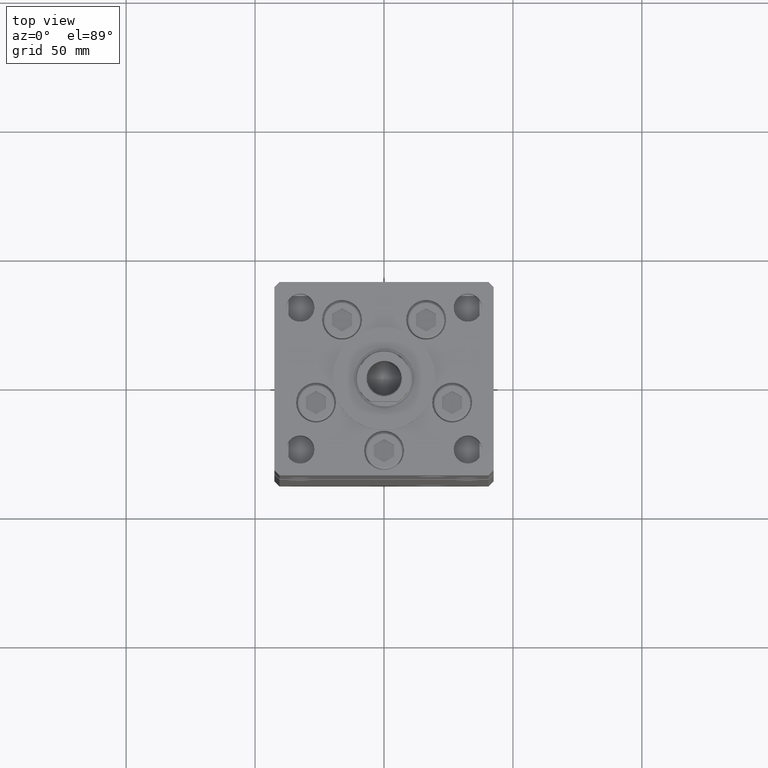
[diagram: clean part render]
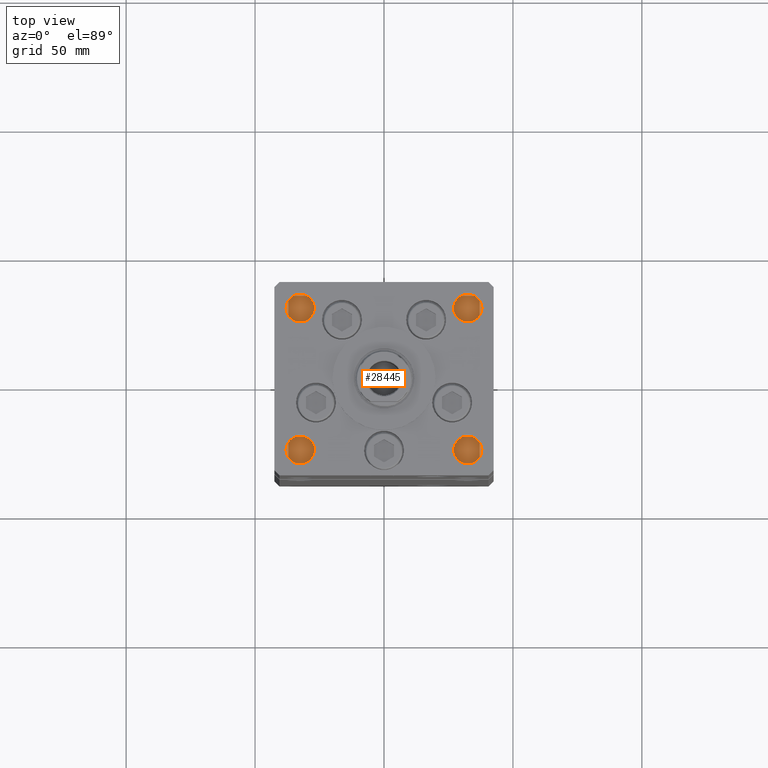
[diagram: same view with one face highlighted and labeled with its STEP entity id]
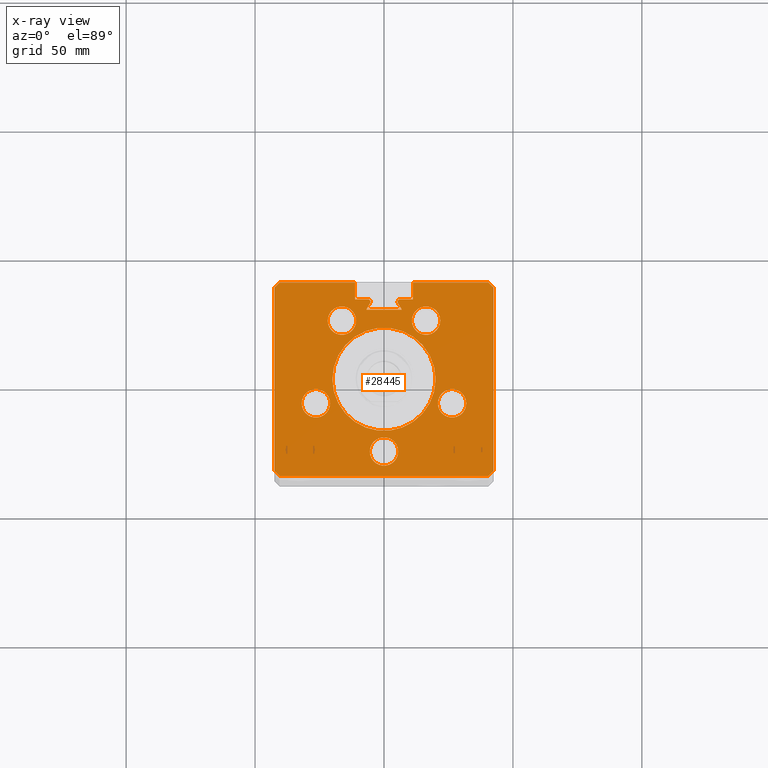
[diagram: x-ray of the same camera — body ghosted, the highlighted face saturated]
A machine part, top view. The second image highlights one B-rep face of the part: STEP entity #28445.
The next image is the same camera in x-ray: the body ghosted, the highlighted face saturated — about 0% of this face is hidden behind the body in this view.
In plain terms, the highlighted planar face has unit normal (0, 0, -1).
Its self-contained STEP definition (entity closure, byte-faithful):
#96 = DIRECTION ( 'NONE',  ( 0.000000000000000000, 0.000000000000000000, -1.000000000000000000 ) ) ;
#240 = LINE ( 'NONE', #28502, #37952 ) ;
#319 = CARTESIAN_POINT ( 'NONE',  ( -26.39865316429776954, -9.333333333333342807, 218.5000000000000000 ) ) ;
#328 = EDGE_CURVE ( 'NONE', #20945, #7636, #4262, .T. ) ;
#379 = VERTEX_POINT ( 'NONE', #1945 ) ;
#533 = VERTEX_POINT ( 'NONE', #21277 ) ;
#1399 = ORIENTED_EDGE ( 'NONE', *, *, #6462, .T. ) ;
#1432 = CARTESIAN_POINT ( 'NONE',  ( -11.24999999999999822, 31.00000000000000000, 218.5000000000000000 ) ) ;
#1512 = DIRECTION ( 'NONE',  ( 1.000000000000000000, 0.000000000000000000, 0.000000000000000000 ) ) ;
#1848 = VECTOR ( 'NONE', #19251, 1000.000000000000114 ) ;
#1945 = CARTESIAN_POINT ( 'NONE',  ( -40.50000000000000711, 37.50000000000000000, 218.5000000000000000 ) ) ;
#2422 = VECTOR ( 'NONE', #19259, 1000.000000000000000 ) ;
#2481 = VERTEX_POINT ( 'NONE', #32890 ) ;
#2559 = CARTESIAN_POINT ( 'NONE',  ( 0.000000000000000000, 31.00000000000000000, 218.5000000000000000 ) ) ;
#2634 = EDGE_CURVE ( 'NONE', #52325, #42331, #5884, .T. ) ;
#2641 = CARTESIAN_POINT ( 'NONE',  ( 11.24999999999999112, 37.50000000000000000, 218.5000000000000000 ) ) ;
#2883 = CARTESIAN_POINT ( 'NONE',  ( 26.39865316429776954, -9.333333333333339255, 218.5000000000000000 ) ) ;
#3151 = DIRECTION ( 'NONE',  ( 0.000000000000000000, 0.000000000000000000, 1.000000000000000000 ) ) ;
#3615 = EDGE_CURVE ( 'NONE', #4590, #35625, #49817, .T. ) ;
#3834 = ORIENTED_EDGE ( 'NONE', *, *, #52741, .F. ) ;
#4227 = DIRECTION ( 'NONE',  ( 0.4999999999999994449, -0.8660254037844390407, 0.000000000000000000 ) ) ;
#4262 = CIRCLE ( 'NONE', #42946, 5.499999999999998224 ) ;
#4329 = ORIENTED_EDGE ( 'NONE', *, *, #35511, .F. ) ;
#4332 = DIRECTION ( 'NONE',  ( 1.000000000000000000, 0.000000000000000000, 0.000000000000000000 ) ) ;
#4590 = VERTEX_POINT ( 'NONE', #30553 ) ;
#5338 = EDGE_CURVE ( 'NONE', #379, #23487, #18992, .T. ) ;
#5434 = CARTESIAN_POINT ( 'NONE',  ( -16.84845819336020867, 9.727461873366657130, 218.5000000000000000 ) ) ;
#5444 = VERTEX_POINT ( 'NONE', #22760 ) ;
#5807 = CARTESIAN_POINT ( 'NONE',  ( -40.50000000000000711, 37.50000000000000000, 218.5000000000000000 ) ) ;
#5884 = LINE ( 'NONE', #34686, #24969 ) ;
#6106 = VERTEX_POINT ( 'NONE', #23157 ) ;
#6226 = EDGE_CURVE ( 'NONE', #26835, #40326, #47430, .T. ) ;
#6321 = DIRECTION ( 'NONE',  ( 0.000000000000000000, 0.000000000000000000, 1.000000000000000000 ) ) ;
#6462 = EDGE_CURVE ( 'NONE', #53004, #2481, #45911, .T. ) ;
#6798 = CARTESIAN_POINT ( 'NONE',  ( 31.89865316429776954, -9.333333333333339255, 218.5000000000000000 ) ) ;
#6949 = ORIENTED_EDGE ( 'NONE', *, *, #22608, .F. ) ;
#7014 = CARTESIAN_POINT ( 'NONE',  ( -42.49999999999998579, -35.50000000000000711, 218.5000000000000000 ) ) ;
#7134 = LINE ( 'NONE', #2559, #2422 ) ;
#7206 = CARTESIAN_POINT ( 'NONE',  ( -11.24999999999999822, 37.50000000000000000, 218.5000000000000000 ) ) ;
#7217 = EDGE_CURVE ( 'NONE', #40895, #42331, #240, .T. ) ;
#7369 = DIRECTION ( 'NONE',  ( 1.000000000000000000, 0.000000000000000000, 0.000000000000000000 ) ) ;
#7381 = ORIENTED_EDGE ( 'NONE', *, *, #6226, .F. ) ;
#7458 = CARTESIAN_POINT ( 'NONE',  ( 20.00000000000000000, 2.449293598294706513E-15, 218.5000000000000000 ) ) ;
#7636 = VERTEX_POINT ( 'NONE', #6798 ) ;
#7882 = AXIS2_PLACEMENT_3D ( 'NONE', #19766, #20562, #7369 ) ;
#7904 = CARTESIAN_POINT ( 'NONE',  ( -11.24999999999999822, 37.50000000000000000, 218.5000000000000000 ) ) ;
#7937 = EDGE_CURVE ( 'NONE', #23224, #39317, #8802, .T. ) ;
#8515 = DIRECTION ( 'NONE',  ( 1.000000000000000000, 0.000000000000000000, 0.000000000000000000 ) ) ;
#8662 = CARTESIAN_POINT ( 'NONE',  ( 6.183333333333997928, 31.00000000000000000, 218.5000000000000000 ) ) ;
#8802 = CIRCLE ( 'NONE', #49147, 5.499999999999998224 ) ;
#9084 = CARTESIAN_POINT ( 'NONE',  ( -20.00000000000000000, 0.000000000000000000, 218.5000000000000000 ) ) ;
#9149 = ORIENTED_EDGE ( 'NONE', *, *, #31593, .T. ) ;
#9284 = DIRECTION ( 'NONE',  ( 1.000000000000000000, 0.000000000000000000, 0.000000000000000000 ) ) ;
#9681 = VERTEX_POINT ( 'NONE', #9084 ) ;
#9747 = VERTEX_POINT ( 'NONE', #24107 ) ;
#9888 = EDGE_CURVE ( 'NONE', #21383, #6106, #15719, .T. ) ;
#10467 = CIRCLE ( 'NONE', #7882, 5.500000000000000000 ) ;
#10705 = CIRCLE ( 'NONE', #37361, 0.9333333333340008142 ) ;
#10820 = CARTESIAN_POINT ( 'NONE',  ( 40.49999999999998579, -37.50000000000000711, 218.5000000000000000 ) ) ;
#10827 = CARTESIAN_POINT ( 'NONE',  ( 0.000000000000000000, 0.000000000000000000, 218.5000000000000000 ) ) ;
#11237 = CARTESIAN_POINT ( 'NONE',  ( -42.50000000000001421, 35.50000000000000711, 218.5000000000000000 ) ) ;
#11300 = CARTESIAN_POINT ( 'NONE',  ( -5.375042956467944499, 29.59999999999899600, 218.4999999999999716 ) ) ;
#11970 = CARTESIAN_POINT ( 'NONE',  ( -42.50000000000001421, 35.50000000000000711, 218.5000000000000000 ) ) ;
#12502 = AXIS2_PLACEMENT_3D ( 'NONE', #38380, #46968, #1512 ) ;
#12681 = CARTESIAN_POINT ( 'NONE',  ( -6.183333333333997928, 30.06666666666599852, 218.5000000000000000 ) ) ;
#12696 = DIRECTION ( 'NONE',  ( -0.7071067811865474617, -0.7071067811865474617, 0.000000000000000000 ) ) ;
#12770 = ORIENTED_EDGE ( 'NONE', *, *, #43691, .F. ) ;
#12886 = CARTESIAN_POINT ( 'NONE',  ( 42.50000000000001421, 35.50000000000000711, 218.5000000000000000 ) ) ;
#13584 = CARTESIAN_POINT ( 'NONE',  ( 16.32291334290543361, 22.75000000000000000, 218.5000000000000000 ) ) ;
#13687 = AXIS2_PLACEMENT_3D ( 'NONE', #12681, #45239, #46024 ) ;
#13759 = DIRECTION ( 'NONE',  ( 1.000000000000000000, 0.000000000000000000, 0.000000000000000000 ) ) ;
#14031 = CARTESIAN_POINT ( 'NONE',  ( -26.39865316429776954, -9.333333333333342807, 218.5000000000000000 ) ) ;
#14231 = ORIENTED_EDGE ( 'NONE', *, *, #5338, .T. ) ;
#14443 = ORIENTED_EDGE ( 'NONE', *, *, #42131, .F. ) ;
#14791 = CARTESIAN_POINT ( 'NONE',  ( 0.000000000000000000, 0.000000000000000000, 218.5000000000000000 ) ) ;
#14864 = FACE_OUTER_BOUND ( 'NONE', #25622, .T. ) ;
#15264 = DIRECTION ( 'NONE',  ( 1.000000000000000000, 0.000000000000000000, 0.000000000000000000 ) ) ;
#15304 = CIRCLE ( 'NONE', #32505, 20.00000000000000000 ) ;
#15390 = FACE_BOUND ( 'NONE', #23704, .T. ) ;
#15533 = LINE ( 'NONE', #37040, #25484 ) ;
#15719 = CIRCLE ( 'NONE', #29452, 5.499999999999998224 ) ;
#15797 = EDGE_CURVE ( 'NONE', #23487, #46979, #32960, .T. ) ;
#15907 = LINE ( 'NONE', #7014, #41065 ) ;
#16119 = EDGE_CURVE ( 'NONE', #16375, #32358, #52737, .T. ) ;
#16343 = CARTESIAN_POINT ( 'NONE',  ( -6.183333333333997928, 30.06666666666599852, 218.5000000000000000 ) ) ;
#16375 = VERTEX_POINT ( 'NONE', #2641 ) ;
#16386 = ORIENTED_EDGE ( 'NONE', *, *, #42077, .F. ) ;
#16533 = DIRECTION ( 'NONE',  ( 1.000000000000000000, 0.000000000000000000, 0.000000000000000000 ) ) ;
#16534 = DIRECTION ( 'NONE',  ( 1.000000000000000000, 0.000000000000000000, 0.000000000000000000 ) ) ;
#16566 = DIRECTION ( 'NONE',  ( 3.909236002201255146E-16, -1.000000000000000000, 0.000000000000000000 ) ) ;
#16570 = VERTEX_POINT ( 'NONE', #37274 ) ;
#16826 = CIRCLE ( 'NONE', #12502, 5.500000000000000000 ) ;
#17085 = AXIS2_PLACEMENT_3D ( 'NONE', #2883, #3151, #15264 ) ;
#17327 = DIRECTION ( 'NONE',  ( 1.000000000000000000, 0.000000000000000000, 0.000000000000000000 ) ) ;
#17368 = ORIENTED_EDGE ( 'NONE', *, *, #27623, .T. ) ;
#17584 = EDGE_LOOP ( 'NONE', ( #31987, #42570 ) ) ;
#17905 = EDGE_CURVE ( 'NONE', #53004, #30970, #10705, .T. ) ;
#18326 = ORIENTED_EDGE ( 'NONE', *, *, #49857, .F. ) ;
#18977 = CARTESIAN_POINT ( 'NONE',  ( -16.32291334290543361, 22.74999999999999645, 218.5000000000000000 ) ) ;
#18992 = LINE ( 'NONE', #5807, #1848 ) ;
#18993 = DIRECTION ( 'NONE',  ( 1.000000000000000000, 0.000000000000000000, 0.000000000000000000 ) ) ;
#19075 = LINE ( 'NONE', #7206, #21116 ) ;
#19251 = DIRECTION ( 'NONE',  ( -0.7071067811865500152, -0.7071067811865451302, 0.000000000000000000 ) ) ;
#19259 = DIRECTION ( 'NONE',  ( -1.000000000000000000, 0.000000000000000000, 0.000000000000000000 ) ) ;
#19379 = CARTESIAN_POINT ( 'NONE',  ( 0.000000000000000000, 26.99999999999986855, 218.5000000000000000 ) ) ;
#19691 = AXIS2_PLACEMENT_3D ( 'NONE', #18977, #6321, #38355 ) ;
#19766 = CARTESIAN_POINT ( 'NONE',  ( 1.714505518806294638E-15, -28.00000000000000000, 218.5000000000000000 ) ) ;
#20112 = EDGE_CURVE ( 'NONE', #16570, #28028, #16826, .T. ) ;
#20198 = CARTESIAN_POINT ( 'NONE',  ( -11.24999999999999822, 37.50000000000000000, 218.5000000000000000 ) ) ;
#20230 = DIRECTION ( 'NONE',  ( -0.000000000000000000, 0.000000000000000000, 1.000000000000000000 ) ) ;
#20562 = DIRECTION ( 'NONE',  ( 0.000000000000000000, 0.000000000000000000, 1.000000000000000000 ) ) ;
#20869 = EDGE_CURVE ( 'NONE', #16375, #5444, #19075, .T. ) ;
#20945 = VERTEX_POINT ( 'NONE', #44066 ) ;
#21116 = VECTOR ( 'NONE', #23361, 1000.000000000000000 ) ;
#21277 = CARTESIAN_POINT ( 'NONE',  ( -5.249999999999996447, 30.06666666666599852, 218.5000000000000000 ) ) ;
#21356 = ORIENTED_EDGE ( 'NONE', *, *, #22334, .T. ) ;
#21383 = VERTEX_POINT ( 'NONE', #50956 ) ;
#21458 = ORIENTED_EDGE ( 'NONE', *, *, #35708, .T. ) ;
#21612 = CARTESIAN_POINT ( 'NONE',  ( 26.39865316429776954, -9.333333333333339255, 218.5000000000000000 ) ) ;
#21681 = AXIS2_PLACEMENT_3D ( 'NONE', #16343, #50201, #8515 ) ;
#21870 = EDGE_LOOP ( 'NONE', ( #44078, #3834 ) ) ;
#22334 = EDGE_CURVE ( 'NONE', #32358, #30970, #47964, .T. ) ;
#22537 = ORIENTED_EDGE ( 'NONE', *, *, #16119, .T. ) ;
#22564 = CARTESIAN_POINT ( 'NONE',  ( -11.24999999999999822, 0.000000000000000000, 218.5000000000000000 ) ) ;
#22608 = EDGE_CURVE ( 'NONE', #5444, #47855, #15533, .T. ) ;
#22722 = DIRECTION ( 'NONE',  ( -1.000000000000000000, 0.000000000000000000, 0.000000000000000000 ) ) ;
#22760 = CARTESIAN_POINT ( 'NONE',  ( 40.50000000000000711, 37.50000000000000000, 218.5000000000000000 ) ) ;
#23157 = CARTESIAN_POINT ( 'NONE',  ( 21.82291334290543361, 22.75000000000000000, 218.5000000000000000 ) ) ;
#23224 = VERTEX_POINT ( 'NONE', #50396 ) ;
#23361 = DIRECTION ( 'NONE',  ( 1.000000000000000000, 0.000000000000000000, 0.000000000000000000 ) ) ;
#23469 = FACE_BOUND ( 'NONE', #26100, .T. ) ;
#23487 = VERTEX_POINT ( 'NONE', #11237 ) ;
#23579 = ORIENTED_EDGE ( 'NONE', *, *, #34220, .F. ) ;
#23704 = EDGE_LOOP ( 'NONE', ( #23579, #25405 ) ) ;
#23976 = AXIS2_PLACEMENT_3D ( 'NONE', #40122, #20230, #4332 ) ;
#24107 = CARTESIAN_POINT ( 'NONE',  ( -6.183333333333997928, 31.00000000000000000, 218.5000000000000000 ) ) ;
#24327 = ORIENTED_EDGE ( 'NONE', *, *, #17905, .F. ) ;
#24423 = VERTEX_POINT ( 'NONE', #20198 ) ;
#24969 = VECTOR ( 'NONE', #12696, 1000.000000000000114 ) ;
#25240 = CARTESIAN_POINT ( 'NONE',  ( 5.500000000000001776, -28.00000000000000000, 218.5000000000000000 ) ) ;
#25347 = DIRECTION ( 'NONE',  ( 1.000000000000000000, 0.000000000000000000, 0.000000000000000000 ) ) ;
#25405 = ORIENTED_EDGE ( 'NONE', *, *, #20112, .F. ) ;
#25484 = VECTOR ( 'NONE', #40542, 1000.000000000000114 ) ;
#25622 = EDGE_LOOP ( 'NONE', ( #9149, #40415, #14443, #14231, #44984, #17368, #30656, #37003, #49029, #6949, #33304, #22537, #21356, #24327, #1399, #21458, #47532, #12770, #4329 ) ) ;
#26100 = EDGE_LOOP ( 'NONE', ( #18326, #29530 ) ) ;
#26595 = VECTOR ( 'NONE', #38764, 1000.000000000000000 ) ;
#26835 = VERTEX_POINT ( 'NONE', #33353 ) ;
#27013 = CARTESIAN_POINT ( 'NONE',  ( 0.000000000000000000, 31.00000000000000000, 218.5000000000000000 ) ) ;
#27230 = FACE_BOUND ( 'NONE', #17584, .T. ) ;
#27593 = CARTESIAN_POINT ( 'NONE',  ( 11.24999999999999822, 31.00000000000000000, 218.5000000000000000 ) ) ;
#27623 = EDGE_CURVE ( 'NONE', #46979, #40895, #15907, .T. ) ;
#27707 = LINE ( 'NONE', #19379, #36890 ) ;
#27949 = EDGE_CURVE ( 'NONE', #9681, #31313, #15304, .T. ) ;
#28028 = VERTEX_POINT ( 'NONE', #37625 ) ;
#28445 = ADVANCED_FACE ( 'NONE', ( #23469, #40673, #27230, #51706, #15390, #14864, #48197 ), #44437, .F. ) ;
#28502 = CARTESIAN_POINT ( 'NONE',  ( -40.49999999999998579, -37.50000000000000711, 218.5000000000000000 ) ) ;
#28986 = ORIENTED_EDGE ( 'NONE', *, *, #48390, .F. ) ;
#29002 = ORIENTED_EDGE ( 'NONE', *, *, #9888, .F. ) ;
#29044 = AXIS2_PLACEMENT_3D ( 'NONE', #10827, #31801, #52503 ) ;
#29078 = EDGE_CURVE ( 'NONE', #7636, #20945, #47966, .T. ) ;
#29407 = DIRECTION ( 'NONE',  ( 0.000000000000000000, 0.000000000000000000, 1.000000000000000000 ) ) ;
#29452 = AXIS2_PLACEMENT_3D ( 'NONE', #13584, #45603, #9284 ) ;
#29530 = ORIENTED_EDGE ( 'NONE', *, *, #7937, .F. ) ;
#30228 = AXIS2_PLACEMENT_3D ( 'NONE', #45716, #37390, #50009 ) ;
#30502 = EDGE_LOOP ( 'NONE', ( #16386, #7381 ) ) ;
#30553 = CARTESIAN_POINT ( 'NONE',  ( -6.876153656360465938, 26.99999999999986855, 218.5000000000000000 ) ) ;
#30656 = ORIENTED_EDGE ( 'NONE', *, *, #7217, .T. ) ;
#30970 = VERTEX_POINT ( 'NONE', #8662 ) ;
#31205 = DIRECTION ( 'NONE',  ( -0.000000000000000000, 0.000000000000000000, 1.000000000000000000 ) ) ;
#31313 = VERTEX_POINT ( 'NONE', #7458 ) ;
#31593 = EDGE_CURVE ( 'NONE', #9747, #35280, #7134, .T. ) ;
#31801 = DIRECTION ( 'NONE',  ( 0.000000000000000000, 0.000000000000000000, -1.000000000000000000 ) ) ;
#31961 = VECTOR ( 'NONE', #4227, 999.9999999999998863 ) ;
#31987 = ORIENTED_EDGE ( 'NONE', *, *, #29078, .F. ) ;
#32018 = DIRECTION ( 'NONE',  ( -1.000000000000000000, 0.000000000000000000, 0.000000000000000000 ) ) ;
#32306 = DIRECTION ( 'NONE',  ( 0.7071067811865474617, -0.7071067811865474617, 0.000000000000000000 ) ) ;
#32358 = VERTEX_POINT ( 'NONE', #27593 ) ;
#32505 = AXIS2_PLACEMENT_3D ( 'NONE', #14791, #31205, #49712 ) ;
#32890 = CARTESIAN_POINT ( 'NONE',  ( 6.876153656360465938, 26.99999999999986855, 218.5000000000000000 ) ) ;
#32960 = LINE ( 'NONE', #11970, #50173 ) ;
#33304 = ORIENTED_EDGE ( 'NONE', *, *, #20869, .F. ) ;
#33351 = AXIS2_PLACEMENT_3D ( 'NONE', #319, #42009, #25347 ) ;
#33353 = CARTESIAN_POINT ( 'NONE',  ( -5.499999999999998224, -28.00000000000000000, 218.5000000000000000 ) ) ;
#34220 = EDGE_CURVE ( 'NONE', #28028, #16570, #42875, .T. ) ;
#34610 = DIRECTION ( 'NONE',  ( 0.000000000000000000, 0.000000000000000000, 1.000000000000000000 ) ) ;
#34686 = CARTESIAN_POINT ( 'NONE',  ( 42.49999999999998579, -35.50000000000000711, 218.5000000000000000 ) ) ;
#35075 = CARTESIAN_POINT ( 'NONE',  ( 11.24999999999999822, 0.000000000000000000, 218.5000000000000000 ) ) ;
#35280 = VERTEX_POINT ( 'NONE', #1432 ) ;
#35511 = EDGE_CURVE ( 'NONE', #9747, #533, #46360, .T. ) ;
#35591 = EDGE_CURVE ( 'NONE', #47855, #52325, #39285, .T. ) ;
#35625 = VERTEX_POINT ( 'NONE', #11300 ) ;
#35708 = EDGE_CURVE ( 'NONE', #2481, #4590, #27707, .T. ) ;
#35944 = CARTESIAN_POINT ( 'NONE',  ( 42.49999999999998579, -35.50000000000000711, 218.5000000000000000 ) ) ;
#35982 = LINE ( 'NONE', #22564, #41445 ) ;
#36890 = VECTOR ( 'NONE', #32018, 1000.000000000000000 ) ;
#37003 = ORIENTED_EDGE ( 'NONE', *, *, #2634, .F. ) ;
#37040 = CARTESIAN_POINT ( 'NONE',  ( 40.50000000000000711, 37.50000000000000000, 218.5000000000000000 ) ) ;
#37274 = CARTESIAN_POINT ( 'NONE',  ( -21.82291334290543361, 22.74999999999999645, 218.5000000000000000 ) ) ;
#37361 = AXIS2_PLACEMENT_3D ( 'NONE', #44767, #96, #16534 ) ;
#37390 = DIRECTION ( 'NONE',  ( 0.000000000000000000, 0.000000000000000000, 1.000000000000000000 ) ) ;
#37625 = CARTESIAN_POINT ( 'NONE',  ( -10.82291334290543539, 22.74999999999999645, 218.5000000000000000 ) ) ;
#37952 = VECTOR ( 'NONE', #44922, 1000.000000000000000 ) ;
#38169 = VECTOR ( 'NONE', #48695, 1000.000000000000000 ) ;
#38355 = DIRECTION ( 'NONE',  ( 1.000000000000000000, 0.000000000000000000, 0.000000000000000000 ) ) ;
#38380 = CARTESIAN_POINT ( 'NONE',  ( -16.32291334290543361, 22.74999999999999645, 218.5000000000000000 ) ) ;
#38764 = DIRECTION ( 'NONE',  ( -3.909236002201255146E-16, -1.000000000000000000, 0.000000000000000000 ) ) ;
#38884 = CIRCLE ( 'NONE', #40600, 5.499999999999998224 ) ;
#38965 = DIRECTION ( 'NONE',  ( 0.000000000000000000, 1.000000000000000000, 0.000000000000000000 ) ) ;
#39285 = LINE ( 'NONE', #50328, #26595 ) ;
#39317 = VERTEX_POINT ( 'NONE', #52344 ) ;
#39602 = CARTESIAN_POINT ( 'NONE',  ( -40.49999999999998579, -37.50000000000000711, 218.5000000000000000 ) ) ;
#39686 = CARTESIAN_POINT ( 'NONE',  ( 16.32291334290543361, 22.75000000000000000, 218.5000000000000000 ) ) ;
#40122 = CARTESIAN_POINT ( 'NONE',  ( 0.000000000000000000, 0.000000000000000000, 218.5000000000000000 ) ) ;
#40326 = VERTEX_POINT ( 'NONE', #25240 ) ;
#40415 = ORIENTED_EDGE ( 'NONE', *, *, #48153, .T. ) ;
#40542 = DIRECTION ( 'NONE',  ( 0.7071067811865500152, -0.7071067811865451302, 0.000000000000000000 ) ) ;
#40600 = AXIS2_PLACEMENT_3D ( 'NONE', #39686, #34610, #18993 ) ;
#40673 = FACE_BOUND ( 'NONE', #30502, .T. ) ;
#40895 = VERTEX_POINT ( 'NONE', #39602 ) ;
#41065 = VECTOR ( 'NONE', #32306, 1000.000000000000114 ) ;
#41080 = CARTESIAN_POINT ( 'NONE',  ( 16.84845819336020867, 9.727461873366657130, 218.5000000000000000 ) ) ;
#41445 = VECTOR ( 'NONE', #38965, 1000.000000000000000 ) ;
#41683 = EDGE_LOOP ( 'NONE', ( #28986, #29002 ) ) ;
#42009 = DIRECTION ( 'NONE',  ( 0.000000000000000000, 0.000000000000000000, 1.000000000000000000 ) ) ;
#42077 = EDGE_CURVE ( 'NONE', #40326, #26835, #10467, .T. ) ;
#42131 = EDGE_CURVE ( 'NONE', #379, #24423, #44766, .T. ) ;
#42331 = VERTEX_POINT ( 'NONE', #10820 ) ;
#42548 = DIRECTION ( 'NONE',  ( 0.000000000000000000, 0.000000000000000000, 1.000000000000000000 ) ) ;
#42570 = ORIENTED_EDGE ( 'NONE', *, *, #328, .F. ) ;
#42875 = CIRCLE ( 'NONE', #19691, 5.500000000000000000 ) ;
#42946 = AXIS2_PLACEMENT_3D ( 'NONE', #21612, #29407, #17327 ) ;
#43691 = EDGE_CURVE ( 'NONE', #533, #35625, #44871, .T. ) ;
#44066 = CARTESIAN_POINT ( 'NONE',  ( 20.89865316429777309, -9.333333333333339255, 218.5000000000000000 ) ) ;
#44078 = ORIENTED_EDGE ( 'NONE', *, *, #27949, .F. ) ;
#44437 = PLANE ( 'NONE',  #29044 ) ;
#44766 = LINE ( 'NONE', #7904, #46549 ) ;
#44767 = CARTESIAN_POINT ( 'NONE',  ( 6.183333333333997928, 30.06666666666599852, 218.5000000000000000 ) ) ;
#44871 = CIRCLE ( 'NONE', #21681, 0.9333333333340008142 ) ;
#44922 = DIRECTION ( 'NONE',  ( 1.000000000000000000, 0.000000000000000000, 0.000000000000000000 ) ) ;
#44928 = CARTESIAN_POINT ( 'NONE',  ( -42.49999999999998579, -35.50000000000000711, 218.5000000000000000 ) ) ;
#44984 = ORIENTED_EDGE ( 'NONE', *, *, #15797, .T. ) ;
#45239 = DIRECTION ( 'NONE',  ( 0.000000000000000000, 0.000000000000000000, -1.000000000000000000 ) ) ;
#45603 = DIRECTION ( 'NONE',  ( 0.000000000000000000, 0.000000000000000000, 1.000000000000000000 ) ) ;
#45716 = CARTESIAN_POINT ( 'NONE',  ( 1.714505518806294638E-15, -28.00000000000000000, 218.5000000000000000 ) ) ;
#45911 = LINE ( 'NONE', #41080, #31961 ) ;
#46024 = DIRECTION ( 'NONE',  ( 1.000000000000000000, 0.000000000000000000, 0.000000000000000000 ) ) ;
#46360 = CIRCLE ( 'NONE', #13687, 0.9333333333340008142 ) ;
#46549 = VECTOR ( 'NONE', #16533, 1000.000000000000000 ) ;
#46968 = DIRECTION ( 'NONE',  ( 0.000000000000000000, 0.000000000000000000, 1.000000000000000000 ) ) ;
#46979 = VERTEX_POINT ( 'NONE', #44928 ) ;
#47161 = CIRCLE ( 'NONE', #23976, 20.00000000000000000 ) ;
#47430 = CIRCLE ( 'NONE', #30228, 5.500000000000000000 ) ;
#47532 = ORIENTED_EDGE ( 'NONE', *, *, #3615, .T. ) ;
#47855 = VERTEX_POINT ( 'NONE', #12886 ) ;
#47964 = LINE ( 'NONE', #27013, #49504 ) ;
#47966 = CIRCLE ( 'NONE', #17085, 5.499999999999998224 ) ;
#48153 = EDGE_CURVE ( 'NONE', #35280, #24423, #35982, .T. ) ;
#48197 = FACE_BOUND ( 'NONE', #21870, .T. ) ;
#48390 = EDGE_CURVE ( 'NONE', #6106, #21383, #38884, .T. ) ;
#48695 = DIRECTION ( 'NONE',  ( -0.000000000000000000, -1.000000000000000000, 0.000000000000000000 ) ) ;
#48803 = CIRCLE ( 'NONE', #33351, 5.499999999999998224 ) ;
#49029 = ORIENTED_EDGE ( 'NONE', *, *, #35591, .F. ) ;
#49147 = AXIS2_PLACEMENT_3D ( 'NONE', #14031, #42548, #13759 ) ;
#49504 = VECTOR ( 'NONE', #22722, 1000.000000000000000 ) ;
#49712 = DIRECTION ( 'NONE',  ( 1.000000000000000000, 0.000000000000000000, 0.000000000000000000 ) ) ;
#49817 = LINE ( 'NONE', #5434, #50771 ) ;
#49857 = EDGE_CURVE ( 'NONE', #39317, #23224, #48803, .T. ) ;
#50009 = DIRECTION ( 'NONE',  ( 1.000000000000000000, 0.000000000000000000, 0.000000000000000000 ) ) ;
#50173 = VECTOR ( 'NONE', #16566, 1000.000000000000000 ) ;
#50201 = DIRECTION ( 'NONE',  ( 0.000000000000000000, 0.000000000000000000, -1.000000000000000000 ) ) ;
#50328 = CARTESIAN_POINT ( 'NONE',  ( 42.50000000000001421, 35.50000000000000711, 218.5000000000000000 ) ) ;
#50353 = DIRECTION ( 'NONE',  ( 0.4999999999999994449, 0.8660254037844390407, 0.000000000000000000 ) ) ;
#50396 = CARTESIAN_POINT ( 'NONE',  ( -31.89865316429776954, -9.333333333333342807, 218.5000000000000000 ) ) ;
#50771 = VECTOR ( 'NONE', #50353, 999.9999999999998863 ) ;
#50842 = CARTESIAN_POINT ( 'NONE',  ( 5.375042956467945388, 29.59999999999899600, 218.5000000000000000 ) ) ;
#50956 = CARTESIAN_POINT ( 'NONE',  ( 10.82291334290543894, 22.75000000000000000, 218.5000000000000000 ) ) ;
#51706 = FACE_BOUND ( 'NONE', #41683, .T. ) ;
#52325 = VERTEX_POINT ( 'NONE', #35944 ) ;
#52344 = CARTESIAN_POINT ( 'NONE',  ( -20.89865316429777309, -9.333333333333342807, 218.5000000000000000 ) ) ;
#52503 = DIRECTION ( 'NONE',  ( -1.000000000000000000, 0.000000000000000000, -0.000000000000000000 ) ) ;
#52737 = LINE ( 'NONE', #35075, #38169 ) ;
#52741 = EDGE_CURVE ( 'NONE', #31313, #9681, #47161, .T. ) ;
#53004 = VERTEX_POINT ( 'NONE', #50842 ) ;